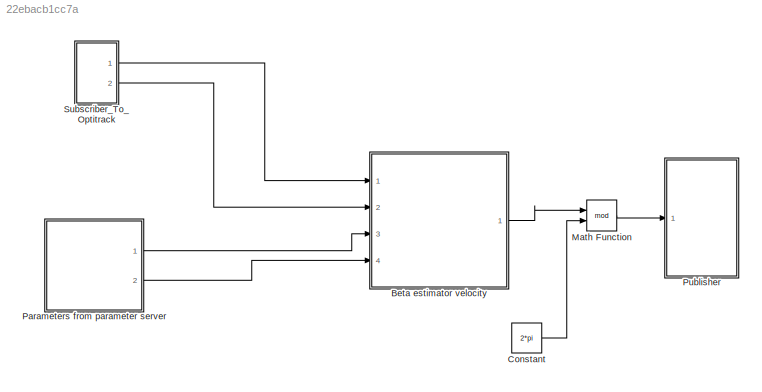
MODEL slx_22ebacb1cc7a
KIND model
CONFIG AbsTol = auto
CONFIG EnableMultiTasking = off
CONFIG FixedStep = 1e-3
CONFIG MaxStep = auto
CONFIG MinStep = auto
CONFIG RelTol = 1e-3
CONFIG SampleTimeConstraint = Unconstrained
CONFIG Solver = FixedStepAuto
CONFIG SolverName = FixedStepAuto
CONFIG StartTime = 0.0
CONFIG StopTime = inf
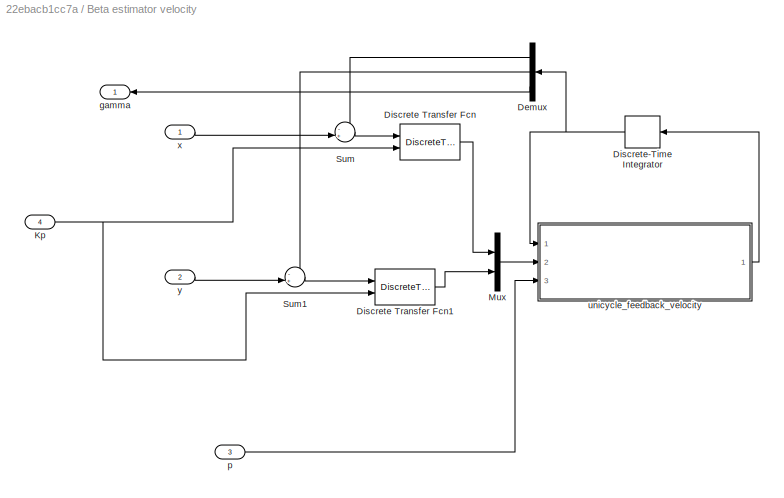
BLOCK [SubSystem] Beta estimator velocity
  Ports = [4, 1]
  RequestExecContextInheritance = off
  Variant = off
BLOCK [Demux] Beta estimator velocity/Demux
  DisplayOption = bar
  Outputs = 3
  Ports = [1, 3]
BLOCK [DiscreteTransferFcn] Beta estimator velocity/Discrete Transfer Fcn
  Denominator = 1
  InputPortMap = u0,p1
  NumeratorSource = Input port
  Ports = [2, 1]
BLOCK [DiscreteTransferFcn] Beta estimator velocity/Discrete Transfer Fcn1
  Denominator = 1
  InputPortMap = u0,p1
  NumeratorSource = Input port
  Ports = [2, 1]
BLOCK [DiscreteIntegrator] Beta estimator velocity/Discrete-Time Integrator
  ICPrevOutput = DiscIntNeverNeededParam
  ICPrevScaledInput = DiscIntNeverNeededParam
  InitialConditionSetting = State (most efficient)
  Ports = [1, 1]
  SampleTime = 0.001
BLOCK [Inport] Beta estimator velocity/Kp
  IconDisplay = Port number
  Port = 4
BLOCK [Mux] Beta estimator velocity/Mux
  DisplayOption = bar
  Inputs = 2
  Ports = [2, 1]
BLOCK [Sum] Beta estimator velocity/Sum
  IconShape = round
  InputSameDT = off
  Inputs = -+|
  OutDataTypeStr = Inherit: Inherit via internal rule
  Ports = [2, 1]
  SaturateOnIntegerOverflow = off
BLOCK [Sum] Beta estimator velocity/Sum1
  IconShape = round
  InputSameDT = off
  Inputs = -+|
  OutDataTypeStr = Inherit: Inherit via internal rule
  Ports = [2, 1]
  SaturateOnIntegerOverflow = off
BLOCK [Outport] Beta estimator velocity/gamma
  IconDisplay = Port number
BLOCK [Inport] Beta estimator velocity/p
  IconDisplay = Port number
  Port = 3
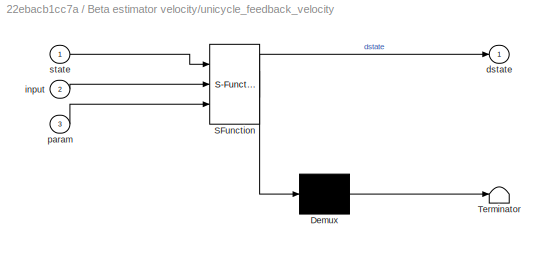
BLOCK [SubSystem] Beta estimator velocity/unicycle_feedback_velocity
  ErrorFcn = Stateflow.Translate.translate
  PermitHierarchicalResolution = ExplicitOnly
  Ports = [3, 1]
  RequestExecContextInheritance = off
  SFBlockType = MATLAB Function
  TreatAsAtomicUnit = on
  Variant = off
BLOCK [Demux] Beta estimator velocity/unicycle_feedback_velocity/ Demux 
  Outputs = 1
  Ports = [1, 1]
BLOCK [S-Function] Beta estimator velocity/unicycle_feedback_velocity/ SFunction 
  EnableBusSupport = on
  FunctionName = sf_sfun
  PortCounts = [3 2]
  Ports = [3, 2]
  SFcnIsStateOwnerBlock = off
  SFunctionDeploymentMode = off
  Tag = Stateflow S-Function beta_estimator_velocity_driftingcar 1
BLOCK [Terminator] Beta estimator velocity/unicycle_feedback_velocity/ Terminator 
BLOCK [Outport] Beta estimator velocity/unicycle_feedback_velocity/dstate
  IconDisplay = Port number
BLOCK [Inport] Beta estimator velocity/unicycle_feedback_velocity/input
  IconDisplay = Port number
  Port = 2
BLOCK [Inport] Beta estimator velocity/unicycle_feedback_velocity/param
  IconDisplay = Port number
  Port = 3
BLOCK [Inport] Beta estimator velocity/unicycle_feedback_velocity/state
  IconDisplay = Port number
BLOCK [Inport] Beta estimator velocity/x
  IconDisplay = Port number
BLOCK [Inport] Beta estimator velocity/y
  IconDisplay = Port number
  Port = 2
BLOCK [Constant] Constant
  Value = 2*pi
BLOCK [Math] Math Function
  Operator = mod
  OutputSignalType = real
  Ports = [2, 1]
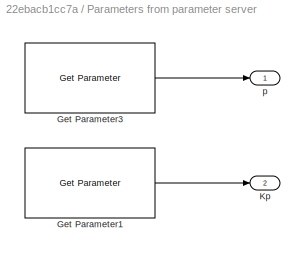
BLOCK [SubSystem] Parameters from parameter server
  Ports = [0, 2]
  RequestExecContextInheritance = off
  Variant = off
BLOCK [Reference] Parameters from parameter server/Get Parameter1  REF=robotlib/Get Parameter
  Ports = [0, 1]
  SourceBlock = robotlib/Get Parameter
  SourceLibraryInfo = This block requires Robotics System Toolbox
  SourceProductBaseCode = RO
  SourceProductName = Robotics System Toolbox
  SourceType = ROS Get Parameter
BLOCK [Reference] Parameters from parameter server/Get Parameter3  REF=robotlib/Get Parameter
  Ports = [0, 1]
  SourceBlock = robotlib/Get Parameter
  SourceLibraryInfo = This block requires Robotics System Toolbox
  SourceProductBaseCode = RO
  SourceProductName = Robotics System Toolbox
  SourceType = ROS Get Parameter
BLOCK [Outport] Parameters from parameter server/Kp
  IconDisplay = Port number
  Port = 2
BLOCK [Outport] Parameters from parameter server/p
  IconDisplay = Port number
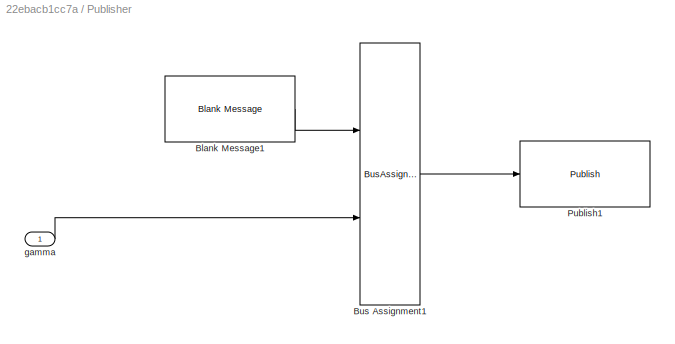
BLOCK [SubSystem] Publisher
  Ports = [1]
  RequestExecContextInheritance = off
  Variant = off
BLOCK [Reference] Publisher/Blank Message1  REF=robotlib/Blank Message
  Ports = [0, 1]
  SourceBlock = robotlib/Blank Message
  SourceLibraryInfo = This block requires Robotics System Toolbox
  SourceProductBaseCode = RO
  SourceProductName = Robotics System Toolbox
  SourceType = ROS Blank Message
BLOCK [BusAssignment] Publisher/Bus Assignment1
  AssignedSignals = Data
  Ports = [2, 1]
BLOCK [Reference] Publisher/Publish1  REF=robotlib/Publish
  Ports = [1]
  SourceBlock = robotlib/Publish
  SourceLibraryInfo = This block requires Robotics System Toolbox
  SourceProductBaseCode = RO
  SourceProductName = Robotics System Toolbox
  SourceType = ROS Publish
BLOCK [Inport] Publisher/gamma
  IconDisplay = Port number
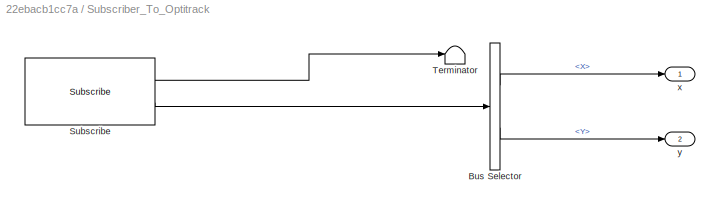
BLOCK [SubSystem] Subscriber_To_Optitrack
  Ports = [0, 2]
  RequestExecContextInheritance = off
  Variant = off
BLOCK [BusSelector] Subscriber_To_Optitrack/Bus Selector
  OutputAsBus = off
  OutputSignals = Pose.Position.X,Pose.Position.Y
  Ports = [1, 2]
BLOCK [Reference] Subscriber_To_Optitrack/Subscribe  REF=robotlib/Subscribe
  Ports = [0, 2]
  SourceBlock = robotlib/Subscribe
  SourceLibraryInfo = This block requires Robotics System Toolbox
  SourceProductBaseCode = RO
  SourceProductName = Robotics System Toolbox
  SourceType = ROS Subscribe
BLOCK [Terminator] Subscriber_To_Optitrack/Terminator
BLOCK [Outport] Subscriber_To_Optitrack/x
  IconDisplay = Port number
BLOCK [Outport] Subscriber_To_Optitrack/y
  IconDisplay = Port number
  Port = 2
LINE Beta estimator velocity/Demux:1 -> Beta estimator velocity/Sum:1
LINE Beta estimator velocity/Demux:2 -> Beta estimator velocity/Sum1:1
LINE Beta estimator velocity/Demux:3 -> Beta estimator velocity/gamma:1
LINE Beta estimator velocity/Discrete Transfer Fcn1:1 -> Beta estimator velocity/Mux:2
LINE Beta estimator velocity/Discrete Transfer Fcn:1 -> Beta estimator velocity/Mux:1
NET Beta estimator velocity/Discrete-Time Integrator:1 -> Beta estimator velocity/Demux:1, Beta estimator velocity/unicycle_feedback_velocity:1
NET Beta estimator velocity/Kp:1 -> Beta estimator velocity/Discrete Transfer Fcn1:2, Beta estimator velocity/Discrete Transfer Fcn:2
LINE Beta estimator velocity/Mux:1 -> Beta estimator velocity/unicycle_feedback_velocity:2
LINE Beta estimator velocity/Sum1:1 -> Beta estimator velocity/Discrete Transfer Fcn1:1
LINE Beta estimator velocity/Sum:1 -> Beta estimator velocity/Discrete Transfer Fcn:1
LINE Beta estimator velocity/p:1 -> Beta estimator velocity/unicycle_feedback_velocity:3
LINE Beta estimator velocity/unicycle_feedback_velocity:1 -> Beta estimator velocity/Discrete-Time Integrator:1
LINE Beta estimator velocity/x:1 -> Beta estimator velocity/Sum:2
LINE Beta estimator velocity/y:1 -> Beta estimator velocity/Sum1:2
LINE Beta estimator velocity:1 -> Math Function:1
LINE Constant:1 -> Math Function:2
LINE Math Function:1 -> Publisher:1
LINE Parameters from parameter server/Get Parameter1:1 -> Parameters from parameter server/Kp:1
LINE Parameters from parameter server/Get Parameter3:1 -> Parameters from parameter server/p:1
LINE Parameters from parameter server:1 -> Beta estimator velocity:3
LINE Parameters from parameter server:2 -> Beta estimator velocity:4
LINE Publisher/Blank Message1:1 -> Publisher/Bus Assignment1:1
LINE Publisher/Bus Assignment1:1 -> Publisher/Publish1:1
LINE Publisher/gamma:1 -> Publisher/Bus Assignment1:2
LINE Subscriber_To_Optitrack/Bus Selector:1 -> Subscriber_To_Optitrack/x:1
LINE Subscriber_To_Optitrack/Bus Selector:2 -> Subscriber_To_Optitrack/y:1
LINE Subscriber_To_Optitrack/Subscribe:1 -> Subscriber_To_Optitrack/Terminator:1
LINE Subscriber_To_Optitrack/Subscribe:2 -> Subscriber_To_Optitrack/Bus Selector:1
LINE Subscriber_To_Optitrack:1 -> Beta estimator velocity:1
LINE Subscriber_To_Optitrack:2 -> Beta estimator velocity:2
note: NET lines group one-source signal fan-out (src -> all destinations, sorted); 1:1 wires keep LINE
CHART Beta estimator velocity/unicycle_feedback_velocity states=1 transitions=1
  STATE_LABEL 'eML_blk_kernel()'
  STATE_LABEL 'SCRIPT:\nfunction dstate = unicycle_feedback_velocity(state,input,param)\n\n% State and input variables\nx     = state(1);\ny     = state(2);\ngamma = state(3); % theta+beta\n\nvxp   = input(1);\nvyp   = input(2);\n\n% Parameters\np = param(1);\n\n% Model equations\ndstate = zeros(3,1);\ndstate(1) = vxp*cos(gamma)^2+vyp*sin(gamma)*cos(gamma);\ndstate(2) = vxp*sin(gamma)*cos(gamma)+vyp*sin(gamma)^2;\ndstate(3) = (vy...<+33ch>'
